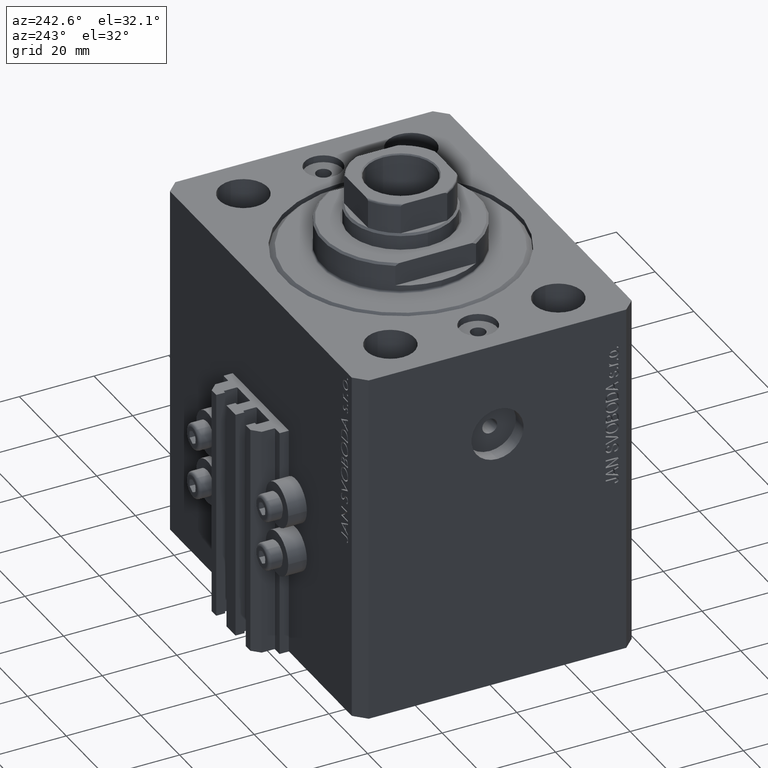
[diagram: clean part render]
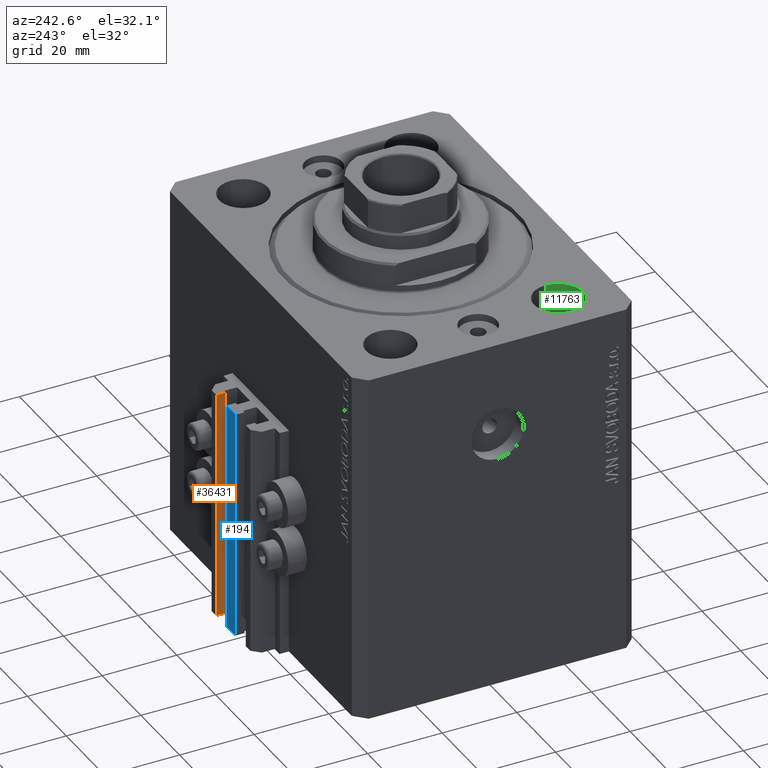
[diagram: same view with three faces highlighted in distinct colors, each labeled with its STEP entity id]
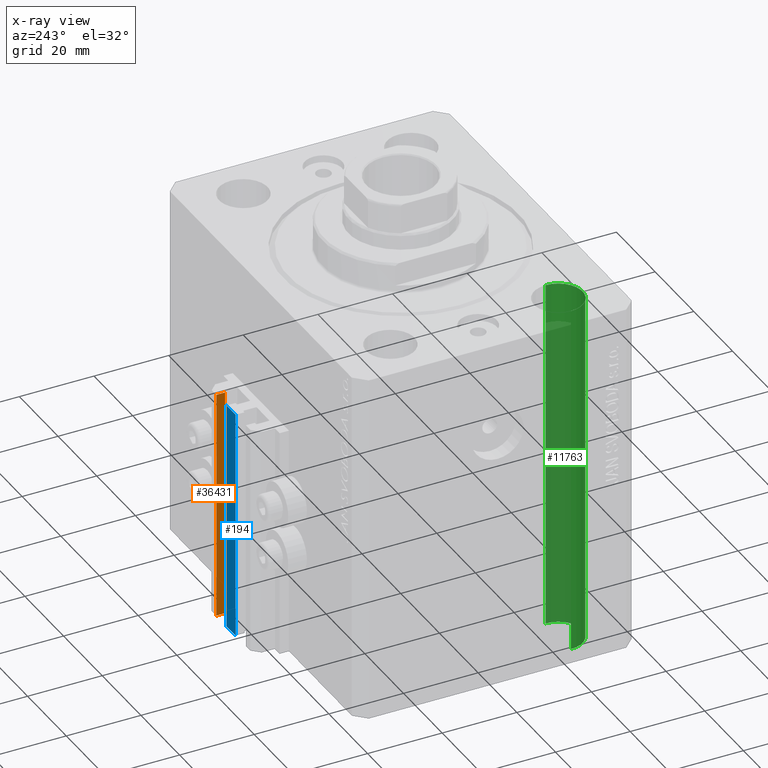
[diagram: x-ray of the same camera — body ghosted, the three highlighted faces saturated]
A machine part, auxiliary view with three faces highlighted in distinct colors.
The next image is the same camera in x-ray (body ghosted, the three faces saturated) — at least one of them is partly hidden behind the body in this view.
Their STEP definitions:

[orange] entity #36431 — the highlighted planar face has unit normal (-1, 0, 0).
#57 = DIRECTION ( 'NONE',  ( 0.000000000000000000, 0.000000000000000000, 1.000000000000000000 ) ) ;
#859 = ORIENTED_EDGE ( 'NONE', *, *, #6536, .F. ) ;
#1820 = PLANE ( 'NONE',  #18161 ) ;
#6536 = EDGE_CURVE ( 'NONE', #35571, #35880, #16428, .T. ) ;
#6724 = DIRECTION ( 'NONE',  ( 0.000000000000000000, 0.000000000000000000, 1.000000000000000000 ) ) ;
#11901 = CARTESIAN_POINT ( 'NONE',  ( 7.649999999999998579, 43.10000000000002984, -95.00000000000000000 ) ) ;
#14053 = CARTESIAN_POINT ( 'NONE',  ( 7.649999999999998579, 45.50000000000002842, -33.00000000000000000 ) ) ;
#14133 = CARTESIAN_POINT ( 'NONE',  ( 7.649999999999998579, 45.50000000000002842, -95.00000000000000000 ) ) ;
#16219 = CARTESIAN_POINT ( 'NONE',  ( 7.649999999999998579, 45.50000000000002842, -33.00000000000000000 ) ) ;
#16255 = EDGE_CURVE ( 'NONE', #39745, #24186, #25116, .T. ) ;
#16428 = LINE ( 'NONE', #45798, #21922 ) ;
#16601 = FACE_OUTER_BOUND ( 'NONE', #46842, .T. ) ;
#18161 = AXIS2_PLACEMENT_3D ( 'NONE', #36116, #21540, #6724 ) ;
#18808 = VECTOR ( 'NONE', #23620, 1000.000000000000000 ) ;
#19182 = CARTESIAN_POINT ( 'NONE',  ( 7.649999999999998579, 45.50000000000002842, -95.00000000000000000 ) ) ;
#19805 = LINE ( 'NONE', #16219, #18808 ) ;
#20235 = ORIENTED_EDGE ( 'NONE', *, *, #16255, .T. ) ;
#20743 = CARTESIAN_POINT ( 'NONE',  ( 7.649999999999998579, 43.10000000000002984, -33.00000000000000000 ) ) ;
#21540 = DIRECTION ( 'NONE',  ( -1.000000000000000000, 0.000000000000000000, 0.000000000000000000 ) ) ;
#21922 = VECTOR ( 'NONE', #30998, 1000.000000000000000 ) ;
#22253 = ORIENTED_EDGE ( 'NONE', *, *, #32656, .F. ) ;
#23620 = DIRECTION ( 'NONE',  ( 0.000000000000000000, -1.000000000000000000, 0.000000000000000000 ) ) ;
#24186 = VERTEX_POINT ( 'NONE', #20743 ) ;
#25116 = LINE ( 'NONE', #28940, #43550 ) ;
#28320 = VECTOR ( 'NONE', #36134, 1000.000000000000000 ) ;
#28940 = CARTESIAN_POINT ( 'NONE',  ( 7.649999999999998579, 43.10000000000002984, -95.00000000000000000 ) ) ;
#29206 = LINE ( 'NONE', #14133, #28320 ) ;
#29308 = EDGE_CURVE ( 'NONE', #35571, #39745, #29206, .T. ) ;
#30717 = ORIENTED_EDGE ( 'NONE', *, *, #29308, .T. ) ;
#30998 = DIRECTION ( 'NONE',  ( 0.000000000000000000, 0.000000000000000000, 1.000000000000000000 ) ) ;
#32656 = EDGE_CURVE ( 'NONE', #35880, #24186, #19805, .T. ) ;
#35571 = VERTEX_POINT ( 'NONE', #19182 ) ;
#35880 = VERTEX_POINT ( 'NONE', #14053 ) ;
#36116 = CARTESIAN_POINT ( 'NONE',  ( 7.649999999999998579, 45.50000000000002842, -95.00000000000000000 ) ) ;
#36134 = DIRECTION ( 'NONE',  ( 0.000000000000000000, -1.000000000000000000, 0.000000000000000000 ) ) ;
#36431 = ADVANCED_FACE ( 'NONE', ( #16601 ), #1820, .T. ) ;
#39745 = VERTEX_POINT ( 'NONE', #11901 ) ;
#43550 = VECTOR ( 'NONE', #57, 1000.000000000000000 ) ;
#45798 = CARTESIAN_POINT ( 'NONE',  ( 7.649999999999998579, 45.50000000000002842, -95.00000000000000000 ) ) ;
#46842 = EDGE_LOOP ( 'NONE', ( #22253, #859, #30717, #20235 ) ) ;

[blue] entity #194 — the highlighted planar face has unit normal (0, -1, 0).
#194 = ADVANCED_FACE ( 'NONE', ( #23110 ), #34098, .F. ) ;
#1378 = DIRECTION ( 'NONE',  ( 0.000000000000000000, -1.000000000000000000, 0.000000000000000000 ) ) ;
#2077 = EDGE_CURVE ( 'NONE', #46868, #24934, #32194, .T. ) ;
#2317 = VECTOR ( 'NONE', #5422, 1000.000000000000000 ) ;
#3314 = LINE ( 'NONE', #21456, #6570 ) ;
#5422 = DIRECTION ( 'NONE',  ( 0.000000000000000000, 0.000000000000000000, 1.000000000000000000 ) ) ;
#6570 = VECTOR ( 'NONE', #44129, 1000.000000000000000 ) ;
#7129 = ORIENTED_EDGE ( 'NONE', *, *, #2077, .T. ) ;
#9887 = CARTESIAN_POINT ( 'NONE',  ( -2.350000000000003642, 45.50000000000000711, -33.00000000000000000 ) ) ;
#11621 = CARTESIAN_POINT ( 'NONE',  ( -2.350000000000003642, 45.50000000000000711, -95.00000000000000000 ) ) ;
#12712 = EDGE_LOOP ( 'NONE', ( #7129, #14193, #46622, #30565 ) ) ;
#14193 = ORIENTED_EDGE ( 'NONE', *, *, #41537, .F. ) ;
#15011 = VERTEX_POINT ( 'NONE', #43166 ) ;
#15963 = CARTESIAN_POINT ( 'NONE',  ( 2.349999999999999645, 45.50000000000000711, -95.00000000000000000 ) ) ;
#16313 = AXIS2_PLACEMENT_3D ( 'NONE', #41253, #1378, #38388 ) ;
#17676 = VERTEX_POINT ( 'NONE', #15963 ) ;
#18079 = EDGE_CURVE ( 'NONE', #15011, #46868, #33852, .T. ) ;
#19508 = LINE ( 'NONE', #23560, #2317 ) ;
#21456 = CARTESIAN_POINT ( 'NONE',  ( -2.350000000000003642, 45.50000000000000711, -95.00000000000000000 ) ) ;
#23110 = FACE_OUTER_BOUND ( 'NONE', #12712, .T. ) ;
#23153 = CARTESIAN_POINT ( 'NONE',  ( 2.349999999999999645, 45.50000000000000711, -33.00000000000000000 ) ) ;
#23560 = CARTESIAN_POINT ( 'NONE',  ( 2.349999999999999645, 45.50000000000000711, -95.00000000000000000 ) ) ;
#24934 = VERTEX_POINT ( 'NONE', #23153 ) ;
#26852 = VECTOR ( 'NONE', #40989, 1000.000000000000000 ) ;
#29090 = DIRECTION ( 'NONE',  ( 1.000000000000000000, 0.000000000000000000, 0.000000000000000000 ) ) ;
#30565 = ORIENTED_EDGE ( 'NONE', *, *, #18079, .T. ) ;
#31551 = EDGE_CURVE ( 'NONE', #15011, #17676, #3314, .T. ) ;
#32194 = LINE ( 'NONE', #46978, #33970 ) ;
#33852 = LINE ( 'NONE', #11621, #26852 ) ;
#33970 = VECTOR ( 'NONE', #29090, 1000.000000000000000 ) ;
#34098 = PLANE ( 'NONE',  #16313 ) ;
#38388 = DIRECTION ( 'NONE',  ( 0.000000000000000000, -0.000000000000000000, -1.000000000000000000 ) ) ;
#40989 = DIRECTION ( 'NONE',  ( 0.000000000000000000, 0.000000000000000000, 1.000000000000000000 ) ) ;
#41253 = CARTESIAN_POINT ( 'NONE',  ( -2.350000000000003642, 45.50000000000000711, -95.00000000000000000 ) ) ;
#41537 = EDGE_CURVE ( 'NONE', #17676, #24934, #19508, .T. ) ;
#43166 = CARTESIAN_POINT ( 'NONE',  ( -2.350000000000003642, 45.50000000000000711, -95.00000000000000000 ) ) ;
#44129 = DIRECTION ( 'NONE',  ( 1.000000000000000000, 0.000000000000000000, 0.000000000000000000 ) ) ;
#46622 = ORIENTED_EDGE ( 'NONE', *, *, #31551, .F. ) ;
#46868 = VERTEX_POINT ( 'NONE', #9887 ) ;
#46978 = CARTESIAN_POINT ( 'NONE',  ( -2.350000000000003642, 45.50000000000000711, -33.00000000000000000 ) ) ;

[green] entity #11763 — the highlighted cylindrical surface (edge-blend (fillet) strip) has radius 6.5 mm, axis along (0, 0, 1).
#111 = LINE ( 'NONE', #22300, #41920 ) ;
#1193 = EDGE_CURVE ( 'NONE', #24659, #18766, #2559, .T. ) ;
#2559 = LINE ( 'NONE', #20932, #30119 ) ;
#2794 = VERTEX_POINT ( 'NONE', #44704 ) ;
#3119 = CIRCLE ( 'NONE', #11486, 6.499999999999999112 ) ;
#5915 = DIRECTION ( 'NONE',  ( 1.000000000000000000, 0.000000000000000000, 0.000000000000000000 ) ) ;
#7548 = DIRECTION ( 'NONE',  ( 1.000000000000000000, 0.000000000000000000, 0.000000000000000000 ) ) ;
#11486 = AXIS2_PLACEMENT_3D ( 'NONE', #37833, #23262, #19677 ) ;
#11763 = ADVANCED_FACE ( 'NONE', ( #14950 ), #36944, .F. ) ;
#14950 = FACE_OUTER_BOUND ( 'NONE', #45795, .T. ) ;
#15429 = DIRECTION ( 'NONE',  ( -0.000000000000000000, -0.000000000000000000, 1.000000000000000000 ) ) ;
#17077 = ORIENTED_EDGE ( 'NONE', *, *, #29150, .T. ) ;
#18766 = VERTEX_POINT ( 'NONE', #26175 ) ;
#19677 = DIRECTION ( 'NONE',  ( 1.000000000000000000, 0.000000000000000000, 0.000000000000000000 ) ) ;
#20932 = CARTESIAN_POINT ( 'NONE',  ( -44.49999999999999289, -22.50000000000000000, -113.3847763108502278 ) ) ;
#22300 = CARTESIAN_POINT ( 'NONE',  ( -31.49999999999999289, -22.50000000000000000, -113.3847763108502278 ) ) ;
#22889 = EDGE_CURVE ( 'NONE', #2794, #24659, #36648, .T. ) ;
#23102 = ORIENTED_EDGE ( 'NONE', *, *, #22889, .T. ) ;
#23262 = DIRECTION ( 'NONE',  ( 0.000000000000000000, 0.000000000000000000, 1.000000000000000000 ) ) ;
#24051 = DIRECTION ( 'NONE',  ( -0.000000000000000000, -0.000000000000000000, 1.000000000000000000 ) ) ;
#24659 = VERTEX_POINT ( 'NONE', #34024 ) ;
#26175 = CARTESIAN_POINT ( 'NONE',  ( -44.49999999999999289, -22.50000000000000000, 0.000000000000000000 ) ) ;
#27952 = ORIENTED_EDGE ( 'NONE', *, *, #1193, .T. ) ;
#29150 = EDGE_CURVE ( 'NONE', #18766, #39297, #3119, .T. ) ;
#29306 = CARTESIAN_POINT ( 'NONE',  ( -37.99999999999999289, -22.50000000000000000, -113.3847763108502278 ) ) ;
#30119 = VECTOR ( 'NONE', #24051, 1000.000000000000000 ) ;
#31234 = DIRECTION ( 'NONE',  ( -0.000000000000000000, -0.000000000000000000, -1.000000000000000000 ) ) ;
#34024 = CARTESIAN_POINT ( 'NONE',  ( -44.49999999999999289, -22.50000000000000000, -95.00000000000000000 ) ) ;
#36567 = ORIENTED_EDGE ( 'NONE', *, *, #44361, .F. ) ;
#36648 = CIRCLE ( 'NONE', #40445, 6.499999999999999112 ) ;
#36944 = CYLINDRICAL_SURFACE ( 'NONE', #47220, 6.499999999999999112 ) ;
#37833 = CARTESIAN_POINT ( 'NONE',  ( -37.99999999999999289, -22.50000000000000000, 0.000000000000000000 ) ) ;
#39297 = VERTEX_POINT ( 'NONE', #43555 ) ;
#40445 = AXIS2_PLACEMENT_3D ( 'NONE', #42216, #31234, #5915 ) ;
#41920 = VECTOR ( 'NONE', #44500, 1000.000000000000000 ) ;
#42216 = CARTESIAN_POINT ( 'NONE',  ( -37.99999999999999289, -22.50000000000000000, -95.00000000000000000 ) ) ;
#43555 = CARTESIAN_POINT ( 'NONE',  ( -31.49999999999999289, -22.50000000000000000, 0.000000000000000000 ) ) ;
#44361 = EDGE_CURVE ( 'NONE', #2794, #39297, #111, .T. ) ;
#44500 = DIRECTION ( 'NONE',  ( -0.000000000000000000, -0.000000000000000000, 1.000000000000000000 ) ) ;
#44704 = CARTESIAN_POINT ( 'NONE',  ( -31.49999999999999289, -22.50000000000000000, -95.00000000000000000 ) ) ;
#45795 = EDGE_LOOP ( 'NONE', ( #23102, #27952, #17077, #36567 ) ) ;
#47220 = AXIS2_PLACEMENT_3D ( 'NONE', #29306, #15429, #7548 ) ;